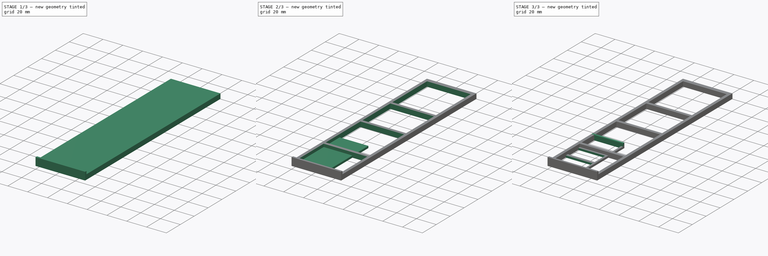
[diagram: build sequence overview — one tinted view per stage of 3, left to right]
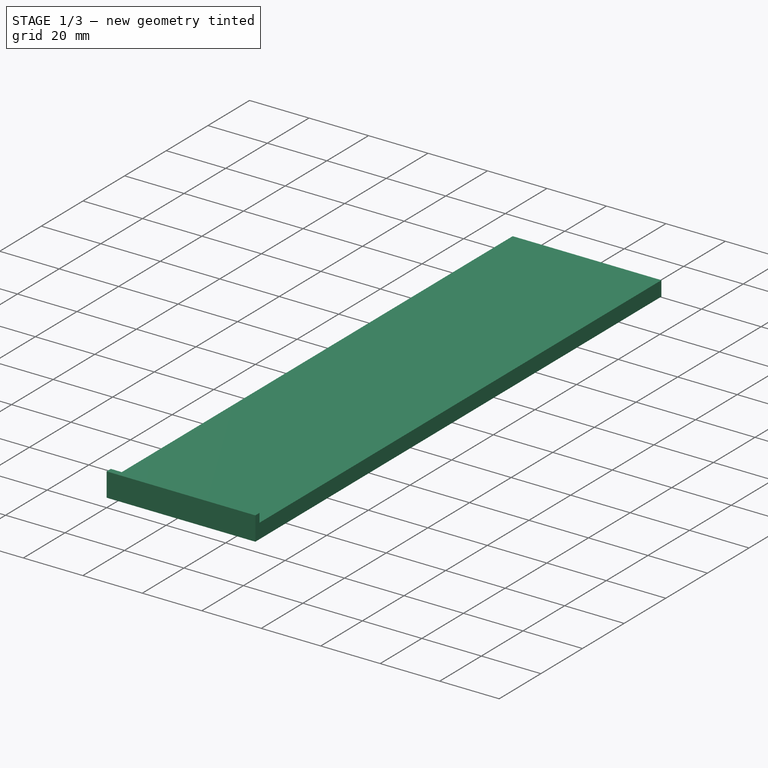
[diagram: stage 1 of 3 — iso view after this stage's code; geometry added in this stage tinted green]
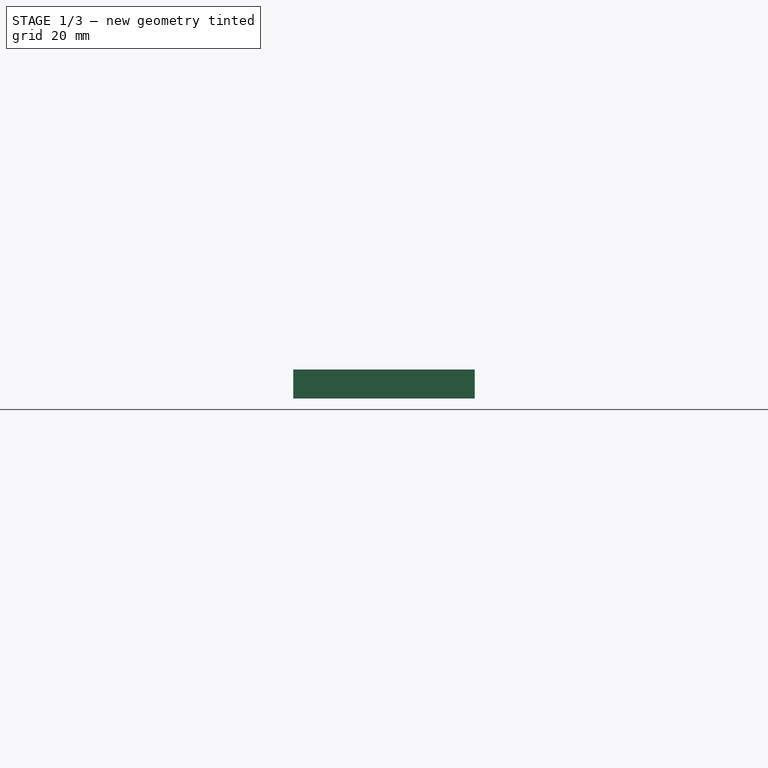
[diagram: stage 1 of 3 — front view after this stage's code; geometry added in this stage tinted green]
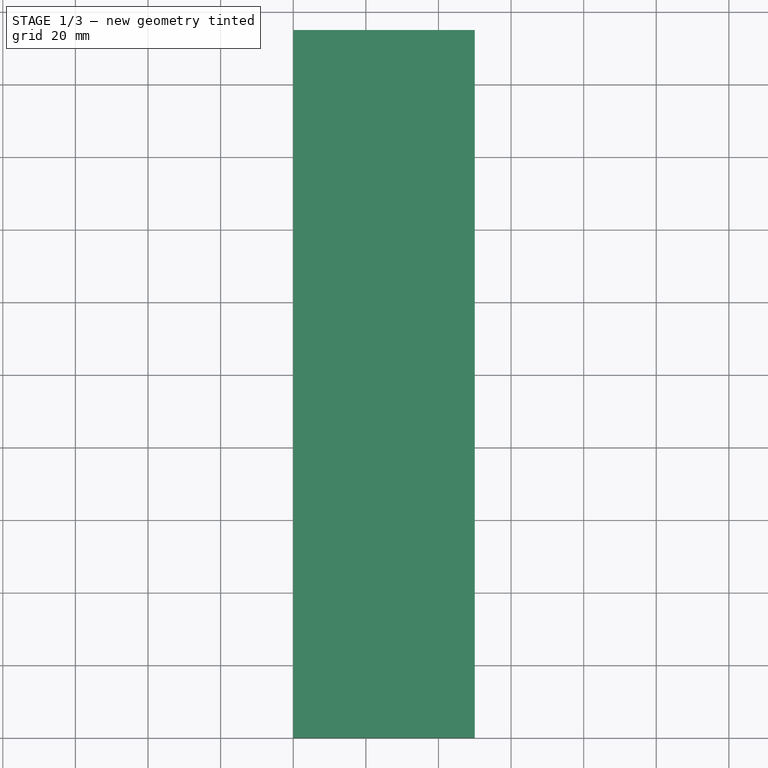
[diagram: stage 1 of 3 — top view after this stage's code; geometry added in this stage tinted green]
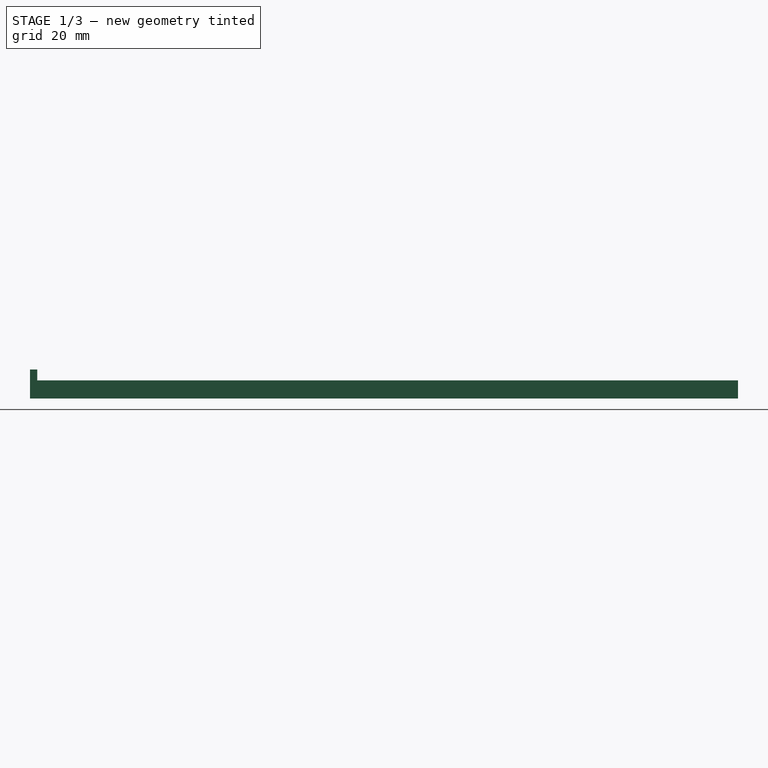
[diagram: stage 1 of 3 — right view after this stage's code; geometry added in this stage tinted green]
FCSTD DOCUMENT  (FreeCAD 1.0R39319 (Git))
Label: Fuselage&CockpitTemplate
License: All rights reserved
LicenseURL: https://en.wikipedia.org/wiki/All_rights_reserved
objects: Sketcher::SketchObject×6, PartDesign::Pad×4, PartDesign::Pocket×2, PartDesign::Body×2, Spreadsheet::Sheet×1
note: 32 computed .brp shape members not serialized (recipe doc carries the construction recipe); baked Part::Feature solids carry a one-line shape summary decoded from their .brp

FEATURE [PartDesign::Body] Body001  label="FuselageTemplate"
  AllowCompound = false
  Group = -> [Sketch002,Pad001,Sketch003,Pad002,Sketch004,Pocket001]
  Origin = -> Origin001
  Placement = pos=(0,25,0) rot=(0,0,1;0rad)
  Tip = -> Pocket001
FEATURE [Sketcher::SketchObject] Sketch
  ArcFitTolerance = 1e-06
  AttachmentSupport = -> [XY_Plane002]
  FullyConstrained = true
  MakeInternals = false
  MapMode = 5
  sketch-geometry (4):
    g0: LineSegment StartX=0 StartY=0 StartZ=0 EndX=50 EndY=0 EndZ=0
    g1: LineSegment StartX=50 StartY=0 StartZ=0 EndX=50 EndY=195 EndZ=0
    g2: LineSegment StartX=50 StartY=195 StartZ=0 EndX=0 EndY=195 EndZ=0
    g3: LineSegment StartX=0 StartY=195 StartZ=0 EndX=0 EndY=0 EndZ=0
  constraints (11):
    c: Coincident(g0,g1)
    c: Coincident(g1,g2)
    c: Coincident(g2,g3)
    c: Coincident(g3,g0)
    c: Horizontal(g0)
    c: Horizontal(g2)
    c: Vertical(g1)
    c: Vertical(g3)
    c: Distance(g1,g3) = 50
    c: Distance(g0,g2) = 195
    c: Coincident(g0,g-1)
FEATURE [PartDesign::Pad] Pad
  Direction = (0,0,1)
  Length = 5
  Length2 = 10
  Profile = -> Sketch
  ReferenceAxis = -> Sketch [N_Axis]
  Refine = true
  Suppressed = false
  Type = 0
FEATURE [Sketcher::SketchObject] Sketch001
  ArcFitTolerance = 1e-06
  AttachmentSupport = -> [Pad]
  ExternalGeometry = -> [Pad]
  FullyConstrained = true
  MakeInternals = false
  MapMode = 5
  Placement = pos=(0,0,5) rot=(0,0,1;0rad)
  sketch-geometry (4):
    g0: LineSegment StartX=0 StartY=0 StartZ=0 EndX=50 EndY=0 EndZ=0
    g1: LineSegment StartX=50 StartY=0 StartZ=0 EndX=50 EndY=2 EndZ=0
    g2: LineSegment StartX=50 StartY=2 StartZ=0 EndX=0 EndY=2 EndZ=0
    g3: LineSegment StartX=0 StartY=2 StartZ=0 EndX=0 EndY=0 EndZ=0
  constraints (11):
    c: Coincident(g0,g1)
    c: Coincident(g1,g2)
    c: Coincident(g2,g3)
    c: Coincident(g3,g0)
    c: Horizontal(g0)
    c: Horizontal(g2)
    c: Vertical(g1)
    c: Vertical(g3)
    c: Coincident(g0,g-1)
    c: PointOnObject(g1,g-3)
    c: DistanceY(g1,g1) = 2
FEATURE [PartDesign::Pad] Pad003
  BaseFeature = -> Pad
  Direction = (0,0,1)
  Length = 3
  Length2 = 10
  Profile = -> Sketch001
  ReferenceAxis = -> Sketch001 [N_Axis]
  Refine = true
  Suppressed = false
  Type = 0
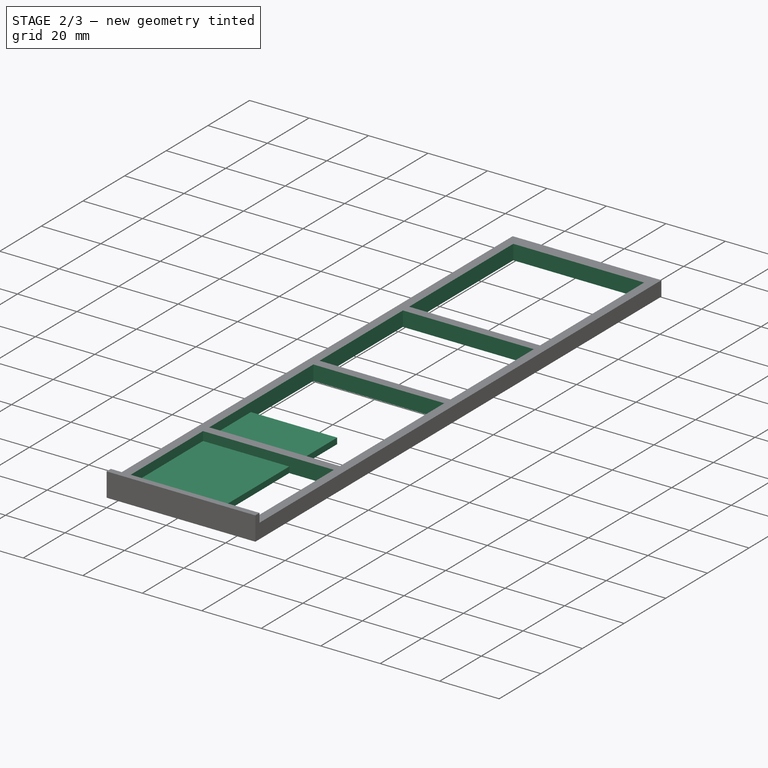
[diagram: stage 2 of 3 — iso view after this stage's code; geometry added in this stage tinted green]
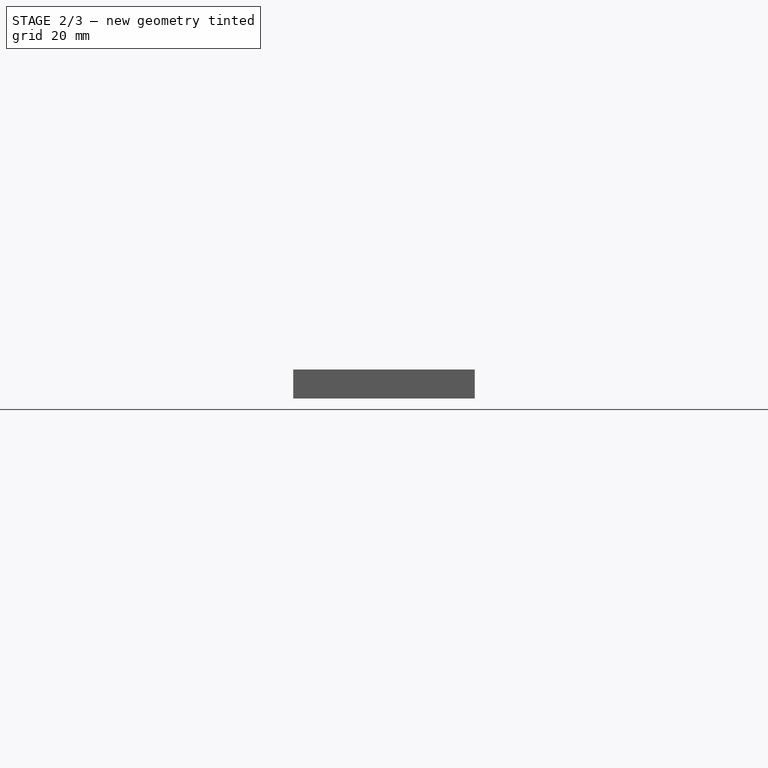
[diagram: stage 2 of 3 — front view after this stage's code; geometry added in this stage tinted green]
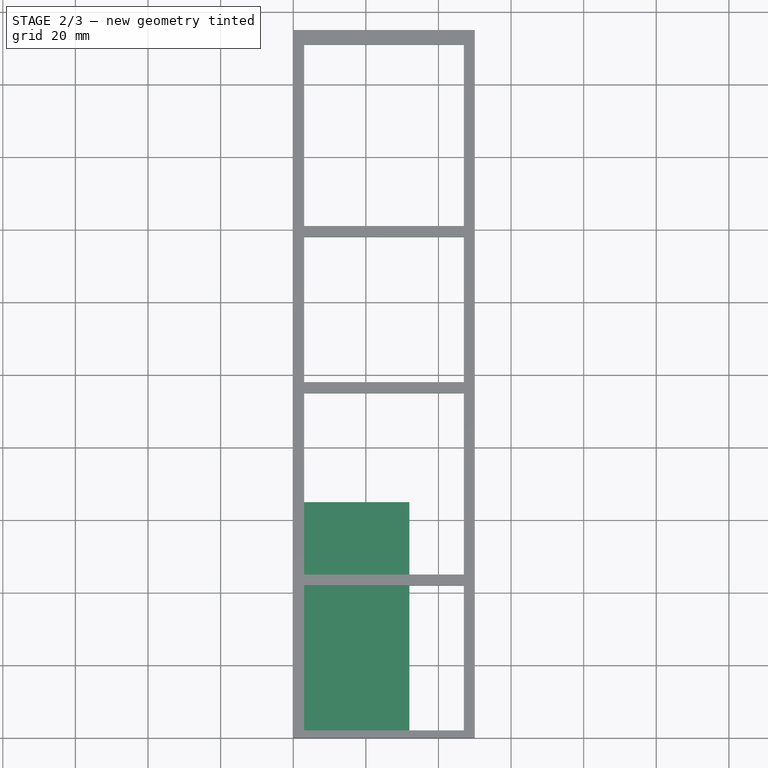
[diagram: stage 2 of 3 — top view after this stage's code; geometry added in this stage tinted green]
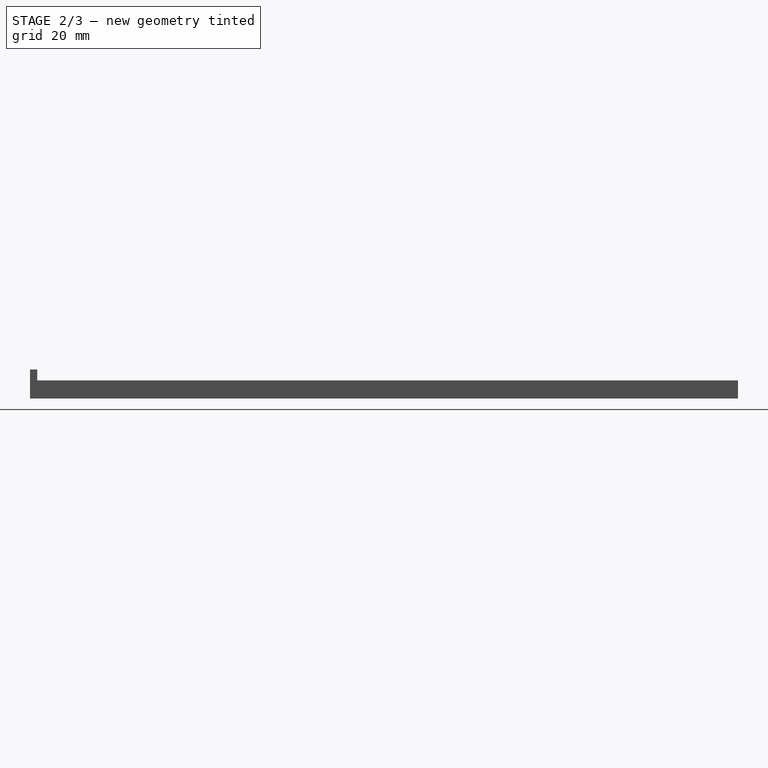
[diagram: stage 2 of 3 — right view after this stage's code; geometry added in this stage tinted green]
FEATURE [Sketcher::SketchObject] Sketch002
  ArcFitTolerance = 1e-06
  AttachmentSupport = -> [XY_Plane001]
  FullyConstrained = true
  MakeInternals = false
  MapMode = 5
  sketch-geometry (4):
    g0: LineSegment StartX=0 StartY=1e-16 StartZ=0 EndX=32 EndY=1e-16 EndZ=0
    g1: LineSegment StartX=32 StartY=1e-16 StartZ=0 EndX=32 EndY=65 EndZ=0
    g2: LineSegment StartX=32 StartY=65 StartZ=0 EndX=0 EndY=65 EndZ=0
    g3: LineSegment StartX=0 StartY=65 StartZ=0 EndX=0 EndY=0 EndZ=0
  constraints (11):
    c: Coincident(g0,g1)
    c: Coincident(g1,g2)
    c: Coincident(g2,g3)
    c: Coincident(g3,g0)
    c: Horizontal(g0)
    c: Horizontal(g2)
    c: Vertical(g1)
    c: Vertical(g3)
    c: Distance(g1,g3) = 32
    c: Distance(g0,g2) = 65
    c: Coincident(g0,g-1)
FEATURE [PartDesign::Pad] Pad001
  Direction = (0,0,1)
  Length = 2
  Length2 = 10
  Profile = -> Sketch002
  ReferenceAxis = -> Sketch002 [N_Axis]
  Refine = true
  Suppressed = false
  Type = 0
FEATURE [Sketcher::SketchObject] Sketch005
  ArcFitTolerance = 1e-06
  AttachmentSupport = -> [Pad003]
  ExternalGeometry = -> [Pad003]
  FullyConstrained = true
  MakeInternals = false
  MapMode = 5
  Placement = pos=(0,0,5) rot=(0,0,1;0rad)
  expr: Constraints[23] = Spreadsheet.foamthickness
  expr: Constraints[35] = Spreadsheet.foamthickness
  expr: Constraints[47] = Spreadsheet.foamthickness
  sketch-geometry (16):
    g0: LineSegment StartX=3 StartY=2 StartZ=0 EndX=47 EndY=2 EndZ=0
    g1: LineSegment StartX=47 StartY=2 StartZ=0 EndX=47 EndY=42 EndZ=0
    g2: LineSegment StartX=47 StartY=42 StartZ=0 EndX=3 EndY=42 EndZ=0
    g3: LineSegment StartX=3 StartY=42 StartZ=0 EndX=3 EndY=2 EndZ=0
    g4: LineSegment StartX=3 StartY=45 StartZ=0 EndX=47 EndY=45 EndZ=0
    g5: LineSegment StartX=47 StartY=45 StartZ=0 EndX=47 EndY=95 EndZ=0
    g6: LineSegment StartX=47 StartY=95 StartZ=0 EndX=3 EndY=95 EndZ=0
    g7: LineSegment StartX=3 StartY=95 StartZ=0 EndX=3 EndY=45 EndZ=0
    g8: LineSegment StartX=3 StartY=98 StartZ=0 EndX=47 EndY=98 EndZ=0
    g9: LineSegment StartX=47 StartY=98 StartZ=0 EndX=47 EndY=138 EndZ=0
    g10: LineSegment StartX=47 StartY=138 StartZ=0 EndX=3 EndY=138 EndZ=0
    g11: LineSegment StartX=3 StartY=138 StartZ=0 EndX=3 EndY=98 EndZ=0
    g12: LineSegment StartX=3 StartY=141 StartZ=0 EndX=47 EndY=141 EndZ=0
    g13: LineSegment StartX=47 StartY=141 StartZ=0 EndX=47 EndY=191 EndZ=0
    g14: LineSegment StartX=47 StartY=191 StartZ=0 EndX=3 EndY=191 EndZ=0
    g15: LineSegment StartX=3 StartY=191 StartZ=0 EndX=3 EndY=141 EndZ=0
  constraints (48):
    c: Coincident(g0,g1)
    c: Coincident(g1,g2)
    c: Coincident(g2,g3)
    c: Coincident(g3,g0)
    c: Horizontal(g0)
    c: Horizontal(g2)
    c: Vertical(g1)
    c: Vertical(g3)
    c: Distance(g0,g2) = 40
    c: PointOnObject(g0,g-3)
    c: Distance(g1,g-4) = 3
    c: Distance(g-5,g3) = 3
    c: Coincident(g4,g5)
    c: Coincident(g5,g6)
    c: Coincident(g6,g7)
    c: Coincident(g7,g4)
    c: Horizontal(g4)
    c: Horizontal(g6)
    c: Vertical(g5)
    c: Vertical(g7)
    c: Distance(g4,g6) = 50
    c: Distance(g-4,g5) = 3
    c: Distance(g-5,g7) = 3
    c: Distance(g2,g4) = 3
    c: Coincident(g8,g9)
    c: Coincident(g9,g10)
    c: Coincident(g10,g11)
    c: Coincident(g11,g8)
    c: Horizontal(g8)
    c: Horizontal(g10)
    c: Vertical(g9)
    c: Vertical(g11)
    c: Distance(g8,g10) = 40
    c: Distance(g-4,g9) = 3
    c: Distance(g-5,g11) = 3
    c: Distance(g6,g8) = 3
    c: Coincident(g12,g13)
    c: Coincident(g13,g14)
    c: Coincident(g14,g15)
    c: Coincident(g15,g12)
    c: Horizontal(g12)
    c: Horizontal(g14)
    c: Vertical(g13)
    c: Vertical(g15)
    c: Distance(g12,g14) = 50
    c: Distance(g-4,g13) = 3
    c: Distance(g-5,g15) = 3
    c: Distance(g10,g12) = 3
FEATURE [PartDesign::Pocket] Pocket
  BaseFeature = -> Pad003
  Direction = (0,0,-1)
  Length = 0
  Length2 = 5
  Profile = -> Sketch005
  ReferenceAxis = -> Sketch005 [N_Axis]
  Refine = true
  Suppressed = false
  Type = 3
  UpToFace = -> Pad003 [Face1]
FEATURE [PartDesign::Body] Body002  label="CockpitTemplate"
  AllowCompound = false
  Group = -> [Sketch,Pad,Sketch001,Pad003,Sketch005,Pocket]
  Origin = -> Origin002
  Placement = pos=(35,0,0) rot=(0,0,1;0rad)
  Tip = -> Pocket
FEATURE [Spreadsheet::Sheet] Spreadsheet
  cells = A1='FoamThickness; B1(foamthickness)=3
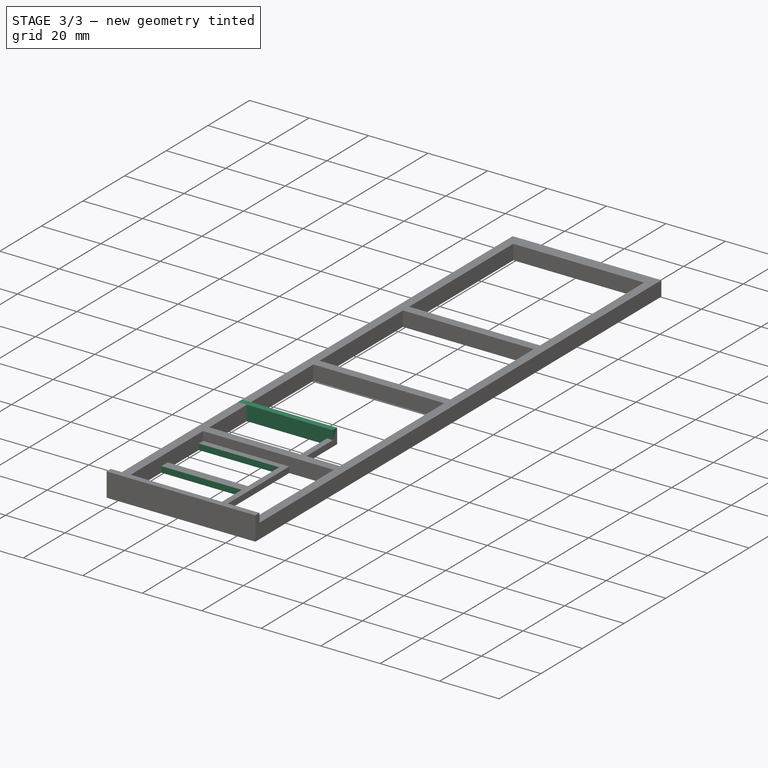
[diagram: stage 3 of 3 — iso view after this stage's code; geometry added in this stage tinted green]
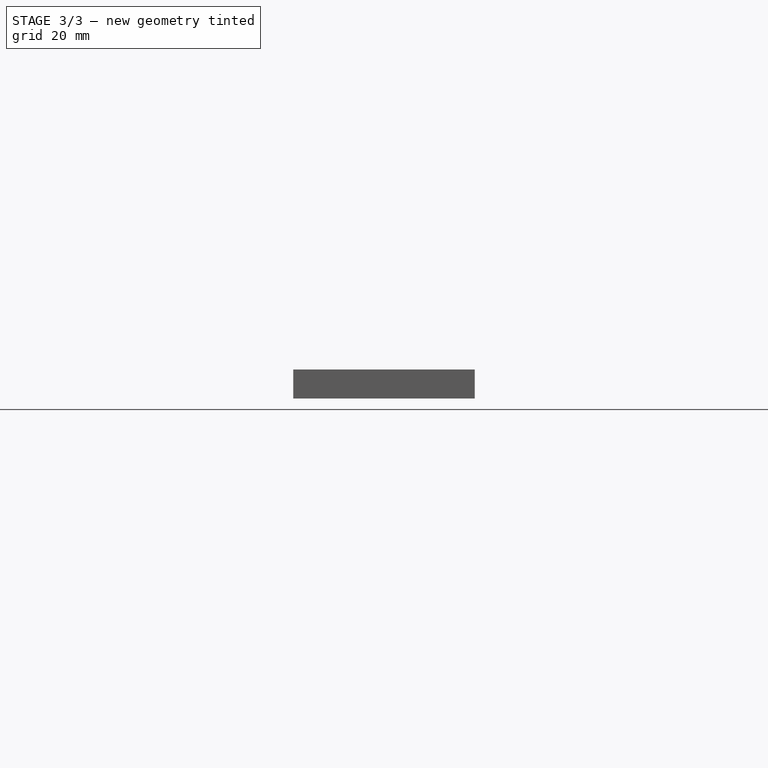
[diagram: stage 3 of 3 — front view after this stage's code; geometry added in this stage tinted green]
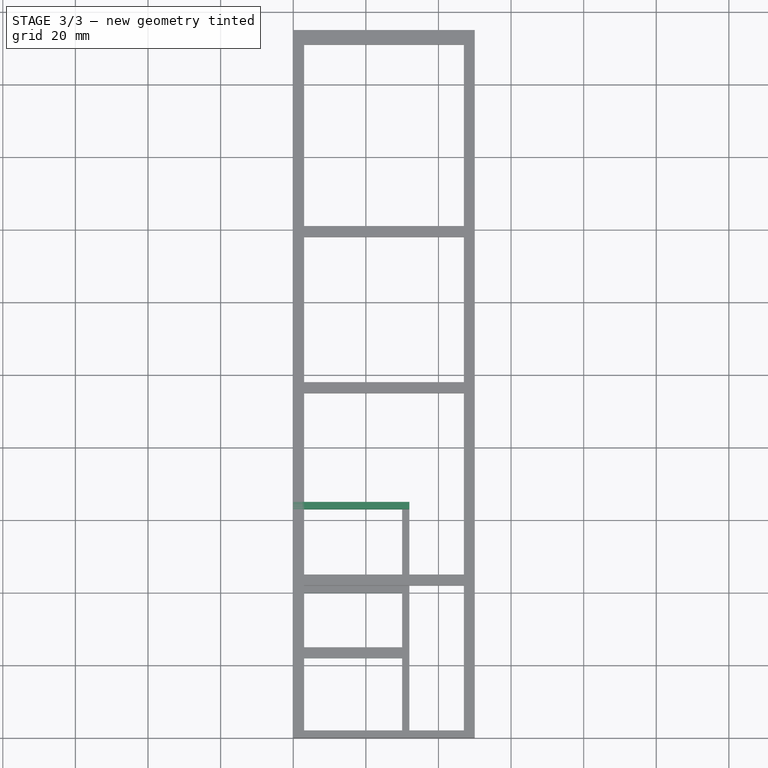
[diagram: stage 3 of 3 — top view after this stage's code; geometry added in this stage tinted green]
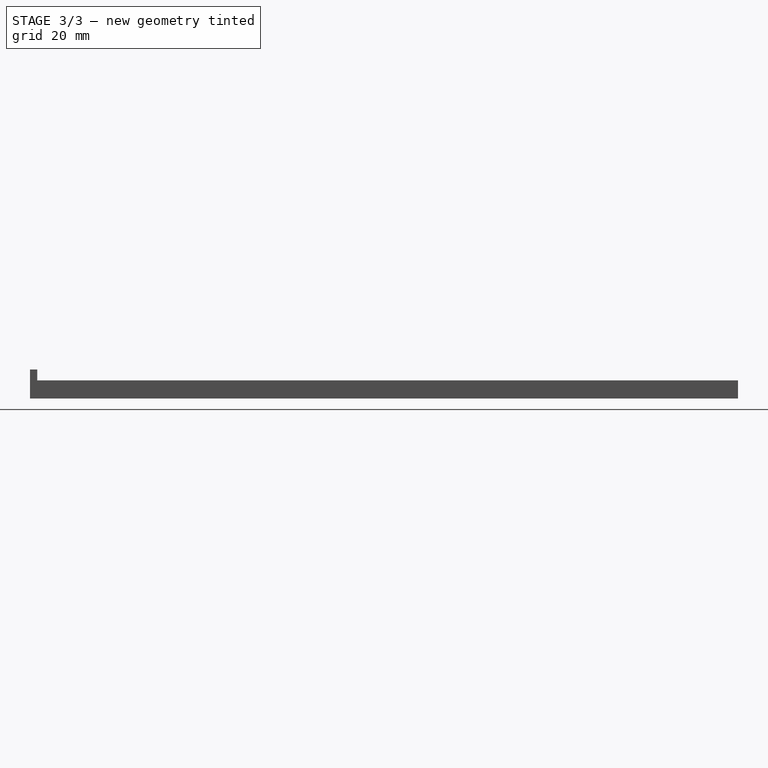
[diagram: stage 3 of 3 — right view after this stage's code; geometry added in this stage tinted green]
FEATURE [Sketcher::SketchObject] Sketch003
  ArcFitTolerance = 1e-06
  AttachmentSupport = -> [Pad001]
  ExternalGeometry = -> [Pad001]
  FullyConstrained = true
  MakeInternals = false
  MapMode = 5
  Placement = pos=(0,0,2) rot=(0,0,1;0rad)
  sketch-geometry (4):
    g0: LineSegment StartX=0 StartY=65 StartZ=0 EndX=0 EndY=63 EndZ=0
    g1: LineSegment StartX=0 StartY=63 StartZ=0 EndX=32 EndY=63 EndZ=0
    g2: LineSegment StartX=32 StartY=63 StartZ=0 EndX=32 EndY=65 EndZ=0
    g3: LineSegment StartX=32 StartY=65 StartZ=0 EndX=0 EndY=65 EndZ=0
  constraints (11):
    c: Coincident(g0,g1)
    c: Coincident(g1,g2)
    c: Coincident(g2,g3)
    c: Coincident(g3,g0)
    c: Vertical(g0)
    c: Vertical(g2)
    c: Horizontal(g1)
    c: Horizontal(g3)
    c: Distance(g0,g2) = 32
    c: DistanceY(g0,g0) = 2
    c: Coincident(g2,g-4)
FEATURE [PartDesign::Pad] Pad002
  BaseFeature = -> Pad001
  Direction = (0,0,1)
  Length = 3
  Length2 = 10
  Profile = -> Sketch003
  ReferenceAxis = -> Sketch003 [N_Axis]
  Refine = true
  Suppressed = false
  Type = 0
FEATURE [Sketcher::SketchObject] Sketch004
  ArcFitTolerance = 1e-06
  AttachmentSupport = -> [Pad002]
  ExternalGeometry = -> [Pad002]
  FullyConstrained = true
  MakeInternals = false
  MapMode = 5
  Placement = pos=(0,0,2) rot=(0,0,1;0rad)
  expr: Constraints[22] = Spreadsheet.foamthickness
  expr: Constraints[32] = Spreadsheet.foamthickness
  sketch-geometry (12):
    g0: LineSegment StartX=2 StartY=63 StartZ=0 EndX=2 EndY=43 EndZ=0
    g1: LineSegment StartX=2 StartY=43 StartZ=0 EndX=30 EndY=43 EndZ=0
    g2: LineSegment StartX=30 StartY=43 StartZ=0 EndX=30 EndY=63 EndZ=0
    g3: LineSegment StartX=30 StartY=63 StartZ=0 EndX=2 EndY=63 EndZ=0
    g4: LineSegment StartX=2 StartY=40 StartZ=0 EndX=2 EndY=25 EndZ=0
    g5: LineSegment StartX=2 StartY=25 StartZ=0 EndX=30 EndY=25 EndZ=0
    g6: LineSegment StartX=30 StartY=25 StartZ=0 EndX=30 EndY=40 EndZ=0
    g7: LineSegment StartX=30 StartY=40 StartZ=0 EndX=2 EndY=40 EndZ=0
    g8: LineSegment StartX=2 StartY=22 StartZ=0 EndX=2 EndY=2 EndZ=0
    g9: LineSegment StartX=2 StartY=2 StartZ=0 EndX=30 EndY=2 EndZ=0
    g10: LineSegment StartX=30 StartY=2 StartZ=0 EndX=30 EndY=22 EndZ=0
    g11: LineSegment StartX=30 StartY=22 StartZ=0 EndX=2 EndY=22 EndZ=0
  constraints (36):
    c: Coincident(g0,g1)
    c: Coincident(g1,g2)
    c: Coincident(g2,g3)
    c: Coincident(g3,g0)
    c: Vertical(g0)
    c: Vertical(g2)
    c: Horizontal(g1)
    c: Horizontal(g3)
    c: Distance(g0,g2) = 28
    c: Distance(g1,g3) = 20
    c: Distance(g-4,g2) = 2
    c: Coincident(g4,g5)
    c: Coincident(g5,g6)
    c: Coincident(g6,g7)
    c: Coincident(g7,g4)
    c: Vertical(g4)
    c: Vertical(g6)
    c: Horizontal(g5)
    c: Horizontal(g7)
    c: Distance(g4,g6) = 28
    c: Distance(g5,g7) = 15
    c: Distance(g-4,g6) = 2
    c: Distance(g1,g7) = 3
    c: Coincident(g8,g9)
    c: Coincident(g9,g10)
    c: Coincident(g10,g11)
    c: Coincident(g11,g8)
    c: Vertical(g8)
    c: Vertical(g10)
    c: Horizontal(g9)
    c: Horizontal(g11)
    c: Distance(g9,g11) = 20
    c: Distance(g5,g11) = 3
    c: DistanceX(g11,g11) = 28
    c: Distance(g-4,g10) = 2
    c: PointOnObject(g0,g-8)
FEATURE [PartDesign::Pocket] Pocket001
  BaseFeature = -> Pad002
  Direction = (0,0,-1)
  Length = 5
  Length2 = 5
  Profile = -> Sketch004
  ReferenceAxis = -> Sketch004 [N_Axis]
  Refine = true
  Suppressed = false
  Type = 0
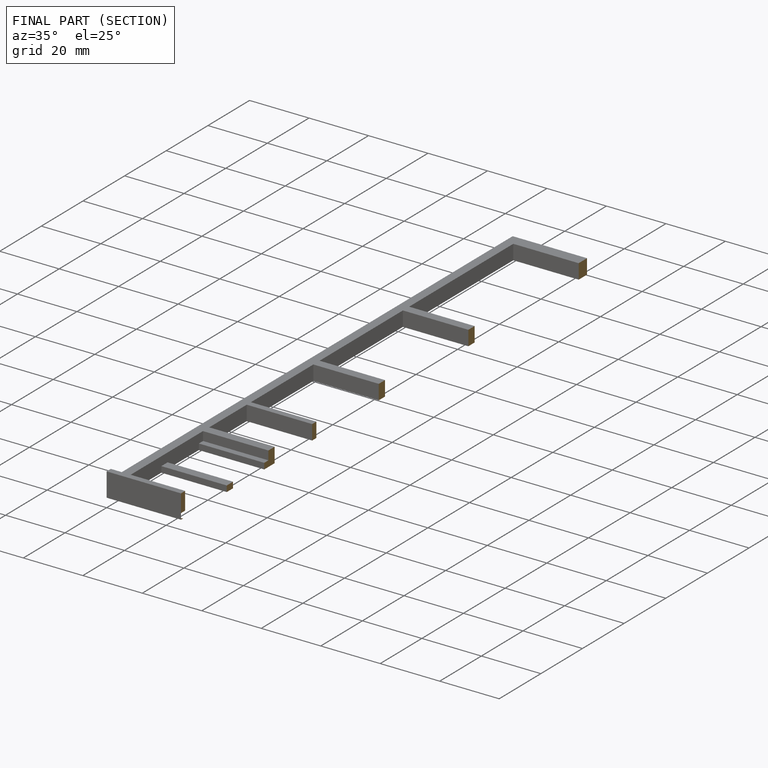
[diagram: finished part — half-section view (interior)]
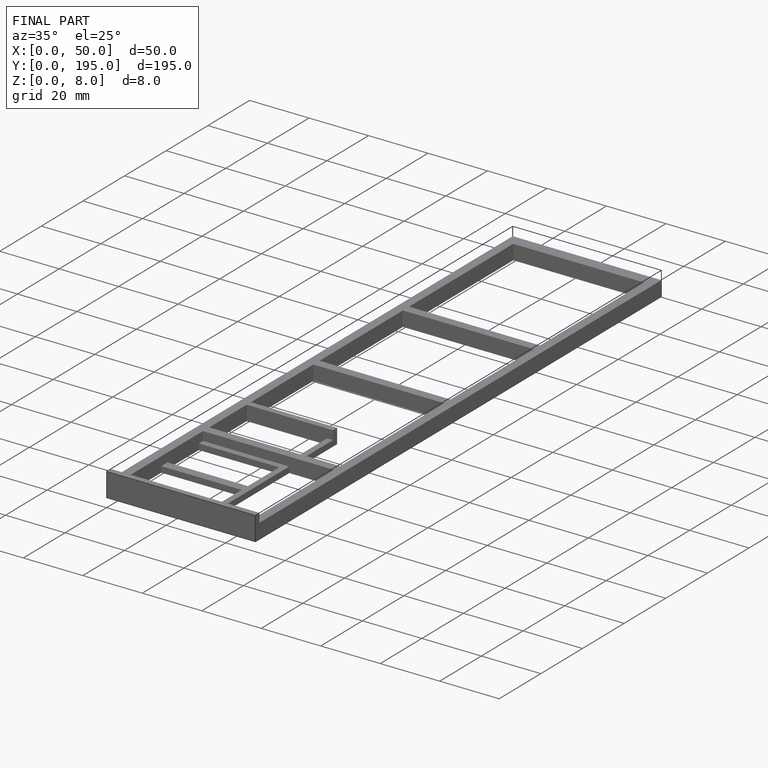
[diagram: finished part — iso view with bounding-box wireframe]
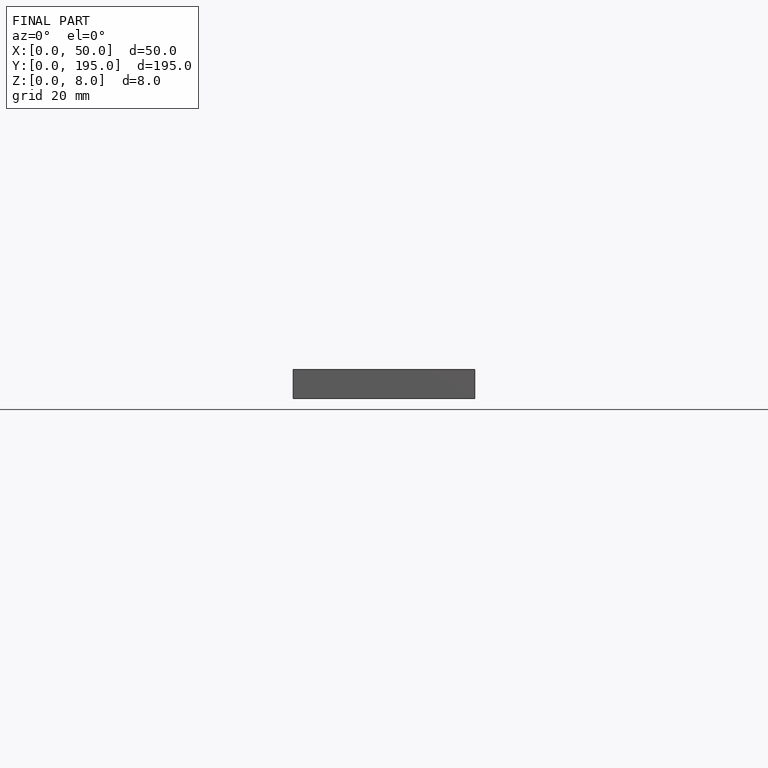
[diagram: finished part — front view with bounding-box wireframe]
